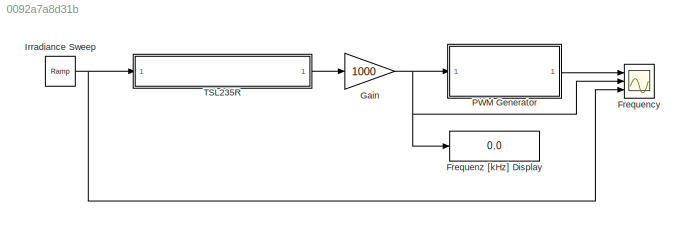
MODEL slx_0092a7a8d31b
KIND model
BLOCK [Scope] Frequency
  DataFormat = StructureWithTime
  Floating = off
  NumInputPorts = 3
  Ports = [3]
  SampleTime = 0
  ShowLegends = off
  YMax = 5~5~5
  YMin = -5~-5~-5
BLOCK [Display] Frequenz [kHz] Display
  Decimation = 1
  Ports = [1]
BLOCK [Gain] Gain
  Gain = 1000
  OutDataTypeStr = Inherit: Inherit via internal rule
  ParamDataTypeStr = Inherit: Inherit via internal rule
  SaturateOnIntegerOverflow = off
BLOCK [Reference] Irradiance Sweep  REF=simulink/Sources/Ramp
  Ports = [0, 1]
  SourceBlock = simulink/Sources/Ramp
  SourceType = Ramp
  VectorParams1D = on
  X0 = 0
  slope = 0.01
  start = 0
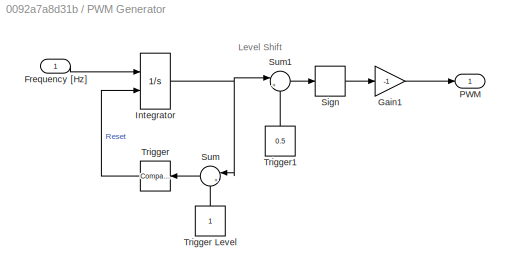
BLOCK [SubSystem] PWM Generator
  FunctionWithSeparateData = off
  MaskHideContents = off
  MinAlgLoopOccurrences = off
  Opaque = off
  Ports = [1, 1]
  PropExecContextOutsideSubsystem = off
  RTWSystemCode = Auto
  RequestExecContextInheritance = off
BLOCK [Inport] PWM Generator/Frequency [Hz]
  IconDisplay = Port number
BLOCK [Gain] PWM Generator/Gain1
  Gain = -1
  OutDataTypeStr = Inherit: Inherit via internal rule
  ParamDataTypeStr = Inherit: Inherit via internal rule
  SaturateOnIntegerOverflow = off
BLOCK [Integrator] PWM Generator/Integrator
  ExternalReset = rising
  Ports = [2, 1]
BLOCK [Outport] PWM Generator/PWM
  IconDisplay = Port number
BLOCK [Signum] PWM Generator/Sign
BLOCK [Sum] PWM Generator/Sum
  IconShape = round
  InputSameDT = off
  Inputs = |+-
  OutDataTypeStr = Inherit: Inherit via internal rule
  Ports = [2, 1]
  SaturateOnIntegerOverflow = off
BLOCK [Sum] PWM Generator/Sum1
  IconShape = round
  InputSameDT = off
  Inputs = |+-
  OutDataTypeStr = Inherit: Inherit via internal rule
  Ports = [2, 1]
  SaturateOnIntegerOverflow = off
BLOCK [Reference] PWM Generator/Trigger  REF=simulink/Logic and Bit
Operations/Compare
To Zero
  OutDataTypeStr = boolean
  Ports = [1, 1]
  SourceBlock = simulink/Logic and Bit\nOperations/Compare\nTo Zero
  SourceType = Compare To Zero
  ZeroCross = on
  relop = >=
BLOCK [Constant] PWM Generator/Trigger Level
BLOCK [Constant] PWM Generator/Trigger1
  Value = 0.5
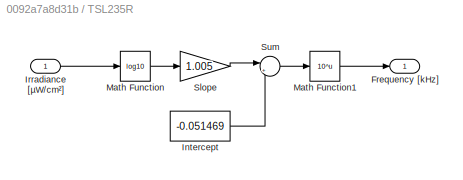
BLOCK [SubSystem] TSL235R
  FunctionWithSeparateData = off
  MaskHideContents = off
  MinAlgLoopOccurrences = off
  Opaque = off
  Ports = [1, 1]
  PropExecContextOutsideSubsystem = off
  RTWSystemCode = Auto
  RequestExecContextInheritance = off
BLOCK [Outport] TSL235R/Frequency [kHz]
  IconDisplay = Port number
BLOCK [Constant] TSL235R/Intercept
  Value = -0.051469
BLOCK [Inport] TSL235R/Irradiance [µW//cm²]
  IconDisplay = Port number
BLOCK [Math] TSL235R/Math Function
  Operator = log10
  Ports = [1, 1]
BLOCK [Math] TSL235R/Math Function1
  Operator = 10^u
  Ports = [1, 1]
BLOCK [Gain] TSL235R/Slope
  Gain = 1.005
  OutDataTypeStr = Inherit: Inherit via internal rule
  ParamDataTypeStr = Inherit: Inherit via internal rule
  SaturateOnIntegerOverflow = off
BLOCK [Sum] TSL235R/Sum
  IconShape = round
  InputSameDT = off
  Inputs = |++
  OutDataTypeStr = Inherit: Inherit via internal rule
  Ports = [2, 1]
  SaturateOnIntegerOverflow = off
ANNOTATION PWM Generator: Level Shift
NET Gain:1 -> Frequency:2, Frequenz [kHz] Display:1, PWM Generator:1
NET Irradiance Sweep:1 -> Frequency:3, TSL235R:1
LINE PWM Generator/Frequency [Hz]:1 -> PWM Generator/Integrator:1
LINE PWM Generator/Gain1:1 -> PWM Generator/PWM:1
NET PWM Generator/Integrator:1 -> PWM Generator/Sum1:1, PWM Generator/Sum:1
LINE PWM Generator/Sign:1 -> PWM Generator/Gain1:1
LINE PWM Generator/Sum1:1 -> PWM Generator/Sign:1
LINE PWM Generator/Sum:1 -> PWM Generator/Trigger:1
LINE PWM Generator/Trigger Level:1 -> PWM Generator/Sum:2
LINE PWM Generator/Trigger1:1 -> PWM Generator/Sum1:2
LINE PWM Generator/Trigger:1 -> PWM Generator/Integrator:2
LINE PWM Generator:1 -> Frequency:1
LINE TSL235R/Intercept:1 -> TSL235R/Sum:2
LINE TSL235R/Irradiance [µW//cm²]:1 -> TSL235R/Math Function:1
LINE TSL235R/Math Function1:1 -> TSL235R/Frequency [kHz]:1
LINE TSL235R/Math Function:1 -> TSL235R/Slope:1
LINE TSL235R/Slope:1 -> TSL235R/Sum:1
LINE TSL235R/Sum:1 -> TSL235R/Math Function1:1
LINE TSL235R:1 -> Gain:1
note: NET lines group one-source signal fan-out (src -> all destinations, sorted); 1:1 wires keep LINE
